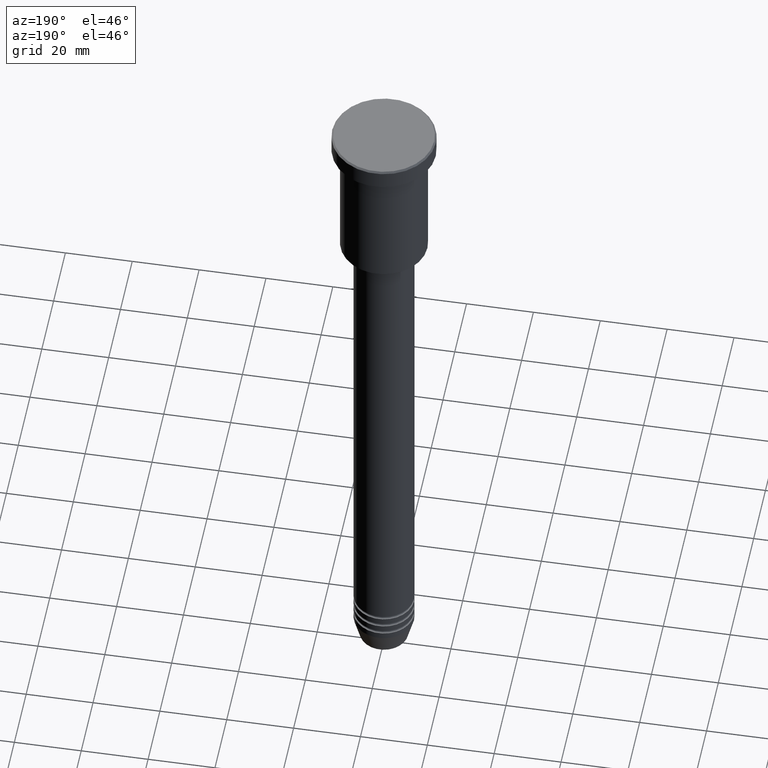
[diagram: clean part render]
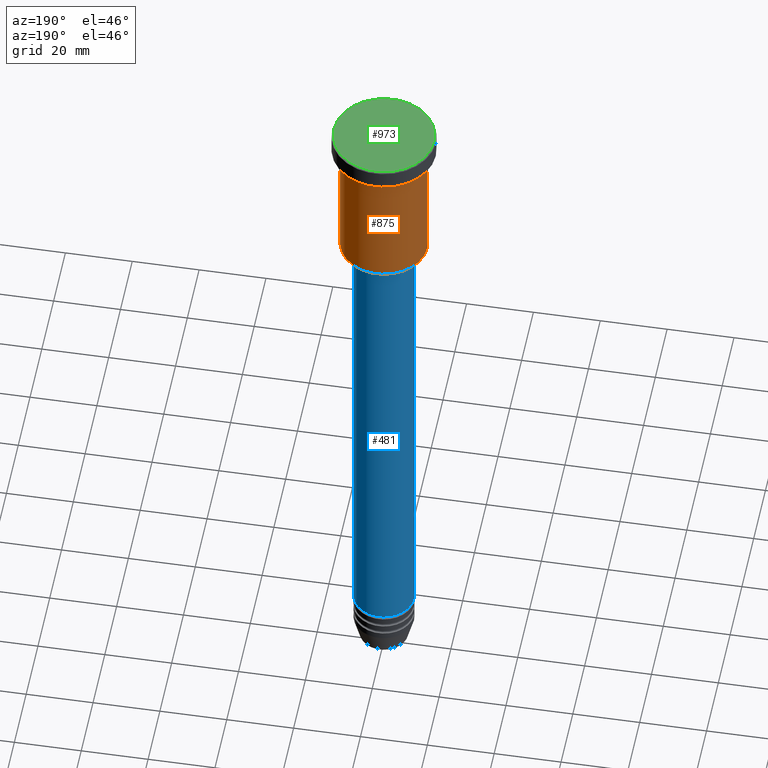
[diagram: same view with three faces highlighted in distinct colors, each labeled with its STEP entity id]
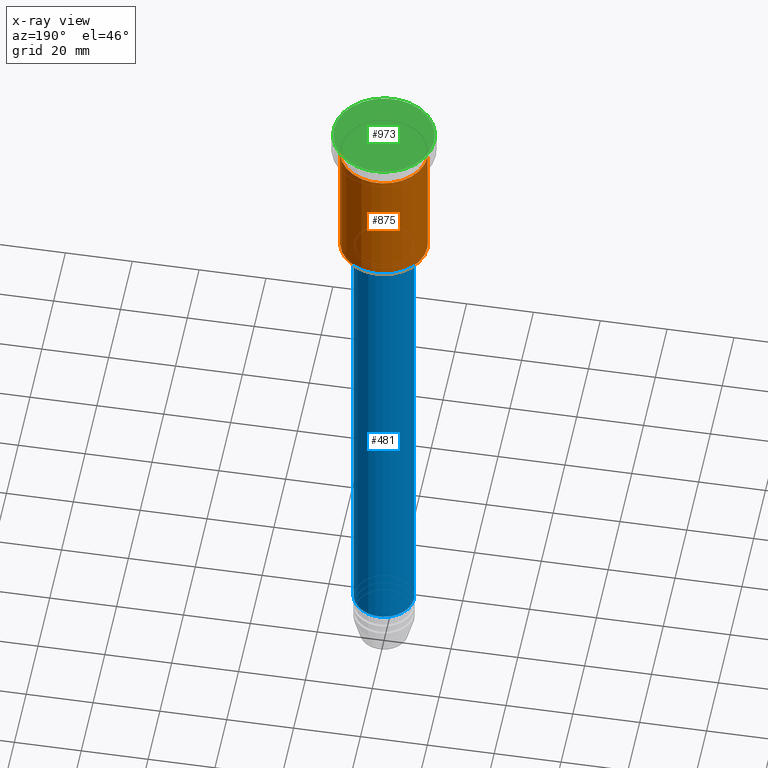
[diagram: x-ray of the same camera — body ghosted, the three highlighted faces saturated]
A machine part, auxiliary view with three faces highlighted in distinct colors.
The next image is the same camera in x-ray (body ghosted, the three faces saturated) — at least one of them is partly hidden behind the body in this view.
Their STEP definitions:

[orange] entity #875 — the highlighted cylindrical surface (partial cylindrical patch) has radius 13 mm, axis along (-0, -0, 1).
#41 = CARTESIAN_POINT ( 'NONE',  ( 0.000000000000000000, 0.000000000000000000, -6.999999999999995559 ) ) ;
#82 = CIRCLE ( 'NONE', #1175, 13.00000000000000000 ) ;
#140 = EDGE_CURVE ( 'NONE', #576, #665, #82, .T. ) ;
#174 = FACE_OUTER_BOUND ( 'NONE', #230, .T. ) ;
#176 = EDGE_CURVE ( 'NONE', #665, #591, #499, .T. ) ;
#191 = CARTESIAN_POINT ( 'NONE',  ( -13.00000000000000000, 1.592040838891559095E-15, 0.000000000000000000 ) ) ;
#198 = CARTESIAN_POINT ( 'NONE',  ( 0.000000000000000000, 0.000000000000000000, -45.49999999999998579 ) ) ;
#218 = CARTESIAN_POINT ( 'NONE',  ( 13.00000000000000000, 0.000000000000000000, -45.49999999999998579 ) ) ;
#230 = EDGE_LOOP ( 'NONE', ( #634, #490, #887, #854 ) ) ;
#239 = AXIS2_PLACEMENT_3D ( 'NONE', #41, #944, #408 ) ;
#254 = VECTOR ( 'NONE', #562, 1000.000000000000000 ) ;
#346 = EDGE_CURVE ( 'NONE', #576, #1108, #509, .T. ) ;
#408 = DIRECTION ( 'NONE',  ( 1.000000000000000000, 0.000000000000000000, 0.000000000000000000 ) ) ;
#490 = ORIENTED_EDGE ( 'NONE', *, *, #176, .T. ) ;
#499 = LINE ( 'NONE', #191, #254 ) ;
#503 = CARTESIAN_POINT ( 'NONE',  ( -13.00000000000000000, 1.592040838891559095E-15, -45.49999999999998579 ) ) ;
#509 = LINE ( 'NONE', #1148, #717 ) ;
#562 = DIRECTION ( 'NONE',  ( -0.000000000000000000, -0.000000000000000000, 1.000000000000000000 ) ) ;
#576 = VERTEX_POINT ( 'NONE', #218 ) ;
#591 = VERTEX_POINT ( 'NONE', #937 ) ;
#625 = CIRCLE ( 'NONE', #239, 13.00000000000000000 ) ;
#634 = ORIENTED_EDGE ( 'NONE', *, *, #140, .T. ) ;
#642 = DIRECTION ( 'NONE',  ( -0.000000000000000000, -0.000000000000000000, 1.000000000000000000 ) ) ;
#647 = AXIS2_PLACEMENT_3D ( 'NONE', #712, #897, #913 ) ;
#665 = VERTEX_POINT ( 'NONE', #503 ) ;
#678 = EDGE_CURVE ( 'NONE', #1108, #591, #625, .T. ) ;
#712 = CARTESIAN_POINT ( 'NONE',  ( 0.000000000000000000, 0.000000000000000000, 0.000000000000000000 ) ) ;
#717 = VECTOR ( 'NONE', #974, 1000.000000000000000 ) ;
#854 = ORIENTED_EDGE ( 'NONE', *, *, #346, .F. ) ;
#875 = ADVANCED_FACE ( 'NONE', ( #174 ), #1089, .T. ) ;
#887 = ORIENTED_EDGE ( 'NONE', *, *, #678, .F. ) ;
#897 = DIRECTION ( 'NONE',  ( -0.000000000000000000, -0.000000000000000000, 1.000000000000000000 ) ) ;
#913 = DIRECTION ( 'NONE',  ( 1.000000000000000000, 0.000000000000000000, 0.000000000000000000 ) ) ;
#937 = CARTESIAN_POINT ( 'NONE',  ( -13.00000000000000000, 1.592040838891559095E-15, -6.999999999999995559 ) ) ;
#944 = DIRECTION ( 'NONE',  ( -0.000000000000000000, -0.000000000000000000, 1.000000000000000000 ) ) ;
#950 = CARTESIAN_POINT ( 'NONE',  ( 13.00000000000000000, 0.000000000000000000, -6.999999999999995559 ) ) ;
#974 = DIRECTION ( 'NONE',  ( -0.000000000000000000, -0.000000000000000000, 1.000000000000000000 ) ) ;
#1089 = CYLINDRICAL_SURFACE ( 'NONE', #647, 13.00000000000000000 ) ;
#1099 = DIRECTION ( 'NONE',  ( -1.000000000000000000, 0.000000000000000000, 0.000000000000000000 ) ) ;
#1108 = VERTEX_POINT ( 'NONE', #950 ) ;
#1148 = CARTESIAN_POINT ( 'NONE',  ( 13.00000000000000000, 0.000000000000000000, 0.000000000000000000 ) ) ;
#1175 = AXIS2_PLACEMENT_3D ( 'NONE', #198, #642, #1099 ) ;

[blue] entity #481 — the highlighted cylindrical surface (edge-blend (fillet) strip) has radius 9 mm, axis along (-0, -0, 1).
#8 = DIRECTION ( 'NONE',  ( -0.000000000000000000, -0.000000000000000000, 1.000000000000000000 ) ) ;
#24 = CARTESIAN_POINT ( 'NONE',  ( -9.000000000000000000, 1.102182119232617714E-15, -47.00000000000002132 ) ) ;
#27 = ORIENTED_EDGE ( 'NONE', *, *, #984, .F. ) ;
#37 = DIRECTION ( 'NONE',  ( 1.000000000000000000, 0.000000000000000000, 0.000000000000000000 ) ) ;
#96 = CARTESIAN_POINT ( 'NONE',  ( -9.000000000000000000, 1.102182119232617714E-15, -195.0000000000000000 ) ) ;
#160 = EDGE_CURVE ( 'NONE', #840, #588, #666, .T. ) ;
#192 = DIRECTION ( 'NONE',  ( -0.000000000000000000, -0.000000000000000000, 1.000000000000000000 ) ) ;
#193 = VERTEX_POINT ( 'NONE', #96 ) ;
#210 = EDGE_CURVE ( 'NONE', #193, #588, #827, .T. ) ;
#251 = CARTESIAN_POINT ( 'NONE',  ( 9.000000000000000000, 0.000000000000000000, -195.0000000000000000 ) ) ;
#277 = DIRECTION ( 'NONE',  ( 1.000000000000000000, 0.000000000000000000, 0.000000000000000000 ) ) ;
#285 = VERTEX_POINT ( 'NONE', #251 ) ;
#336 = CIRCLE ( 'NONE', #813, 9.000000000000000000 ) ;
#372 = CARTESIAN_POINT ( 'NONE',  ( 0.000000000000000000, 0.000000000000000000, -47.00000000000002132 ) ) ;
#462 = LINE ( 'NONE', #1093, #558 ) ;
#481 = ADVANCED_FACE ( 'NONE', ( #1000 ), #923, .T. ) ;
#496 = ORIENTED_EDGE ( 'NONE', *, *, #160, .F. ) ;
#558 = VECTOR ( 'NONE', #192, 1000.000000000000000 ) ;
#563 = EDGE_CURVE ( 'NONE', #285, #193, #336, .T. ) ;
#588 = VERTEX_POINT ( 'NONE', #24 ) ;
#622 = ORIENTED_EDGE ( 'NONE', *, *, #210, .T. ) ;
#645 = AXIS2_PLACEMENT_3D ( 'NONE', #1078, #1090, #277 ) ;
#666 = CIRCLE ( 'NONE', #777, 9.000000000000000000 ) ;
#697 = CARTESIAN_POINT ( 'NONE',  ( 9.000000000000000000, 0.000000000000000000, -47.00000000000002132 ) ) ;
#735 = DIRECTION ( 'NONE',  ( -0.000000000000000000, -0.000000000000000000, 1.000000000000000000 ) ) ;
#743 = DIRECTION ( 'NONE',  ( 1.000000000000000000, 0.000000000000000000, 0.000000000000000000 ) ) ;
#777 = AXIS2_PLACEMENT_3D ( 'NONE', #372, #735, #37 ) ;
#813 = AXIS2_PLACEMENT_3D ( 'NONE', #830, #8, #743 ) ;
#827 = LINE ( 'NONE', #1053, #976 ) ;
#830 = CARTESIAN_POINT ( 'NONE',  ( 0.000000000000000000, 0.000000000000000000, -195.0000000000000000 ) ) ;
#840 = VERTEX_POINT ( 'NONE', #697 ) ;
#851 = ORIENTED_EDGE ( 'NONE', *, *, #563, .T. ) ;
#861 = DIRECTION ( 'NONE',  ( -0.000000000000000000, -0.000000000000000000, 1.000000000000000000 ) ) ;
#912 = EDGE_LOOP ( 'NONE', ( #851, #622, #496, #27 ) ) ;
#923 = CYLINDRICAL_SURFACE ( 'NONE', #645, 9.000000000000000000 ) ;
#976 = VECTOR ( 'NONE', #861, 1000.000000000000000 ) ;
#984 = EDGE_CURVE ( 'NONE', #285, #840, #462, .T. ) ;
#1000 = FACE_OUTER_BOUND ( 'NONE', #912, .T. ) ;
#1053 = CARTESIAN_POINT ( 'NONE',  ( -9.000000000000000000, 1.102182119232617714E-15, 0.000000000000000000 ) ) ;
#1078 = CARTESIAN_POINT ( 'NONE',  ( 0.000000000000000000, 0.000000000000000000, 0.000000000000000000 ) ) ;
#1090 = DIRECTION ( 'NONE',  ( -0.000000000000000000, -0.000000000000000000, 1.000000000000000000 ) ) ;
#1093 = CARTESIAN_POINT ( 'NONE',  ( 9.000000000000000000, 0.000000000000000000, 0.000000000000000000 ) ) ;

[green] entity #973 — the highlighted planar face has unit normal (0, -0, 1).
#6 = CARTESIAN_POINT ( 'NONE',  ( 0.000000000000000000, 0.000000000000000000, 0.000000000000000000 ) ) ;
#10 = EDGE_CURVE ( 'NONE', #283, #386, #141, .T. ) ;
#26 = ORIENTED_EDGE ( 'NONE', *, *, #10, .T. ) ;
#141 = CIRCLE ( 'NONE', #938, 15.00000000000001421 ) ;
#180 = DIRECTION ( 'NONE',  ( 0.000000000000000000, -0.000000000000000000, 1.000000000000000000 ) ) ;
#219 = EDGE_CURVE ( 'NONE', #386, #283, #917, .T. ) ;
#269 = PLANE ( 'NONE',  #1123 ) ;
#283 = VERTEX_POINT ( 'NONE', #621 ) ;
#331 = DIRECTION ( 'NONE',  ( 1.000000000000000000, 0.000000000000000000, 0.000000000000000000 ) ) ;
#334 = CARTESIAN_POINT ( 'NONE',  ( -15.00000000000001421, 0.000000000000000000, 0.000000000000000000 ) ) ;
#374 = CARTESIAN_POINT ( 'NONE',  ( 0.000000000000000000, 0.000000000000000000, 0.000000000000000000 ) ) ;
#386 = VERTEX_POINT ( 'NONE', #334 ) ;
#400 = DIRECTION ( 'NONE',  ( 1.000000000000000000, 0.000000000000000000, 0.000000000000000000 ) ) ;
#555 = DIRECTION ( 'NONE',  ( 1.000000000000000000, 0.000000000000000000, 0.000000000000000000 ) ) ;
#621 = CARTESIAN_POINT ( 'NONE',  ( 15.00000000000001421, 1.867586368699714559E-15, 0.000000000000000000 ) ) ;
#638 = CARTESIAN_POINT ( 'NONE',  ( 0.000000000000000000, 0.000000000000000000, 0.000000000000000000 ) ) ;
#724 = FACE_OUTER_BOUND ( 'NONE', #1074, .T. ) ;
#738 = DIRECTION ( 'NONE',  ( -0.000000000000000000, -0.000000000000000000, 1.000000000000000000 ) ) ;
#769 = ORIENTED_EDGE ( 'NONE', *, *, #219, .T. ) ;
#848 = DIRECTION ( 'NONE',  ( -0.000000000000000000, -0.000000000000000000, 1.000000000000000000 ) ) ;
#917 = CIRCLE ( 'NONE', #1048, 15.00000000000001421 ) ;
#938 = AXIS2_PLACEMENT_3D ( 'NONE', #374, #738, #331 ) ;
#973 = ADVANCED_FACE ( 'NONE', ( #724 ), #269, .T. ) ;
#1048 = AXIS2_PLACEMENT_3D ( 'NONE', #6, #848, #400 ) ;
#1074 = EDGE_LOOP ( 'NONE', ( #769, #26 ) ) ;
#1123 = AXIS2_PLACEMENT_3D ( 'NONE', #638, #180, #555 ) ;